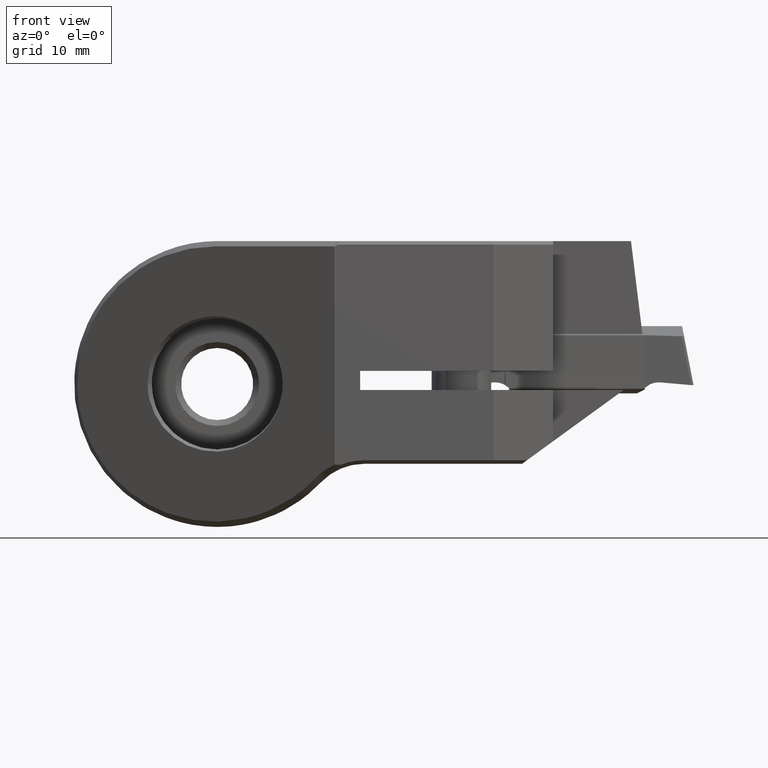
[diagram: clean part render]
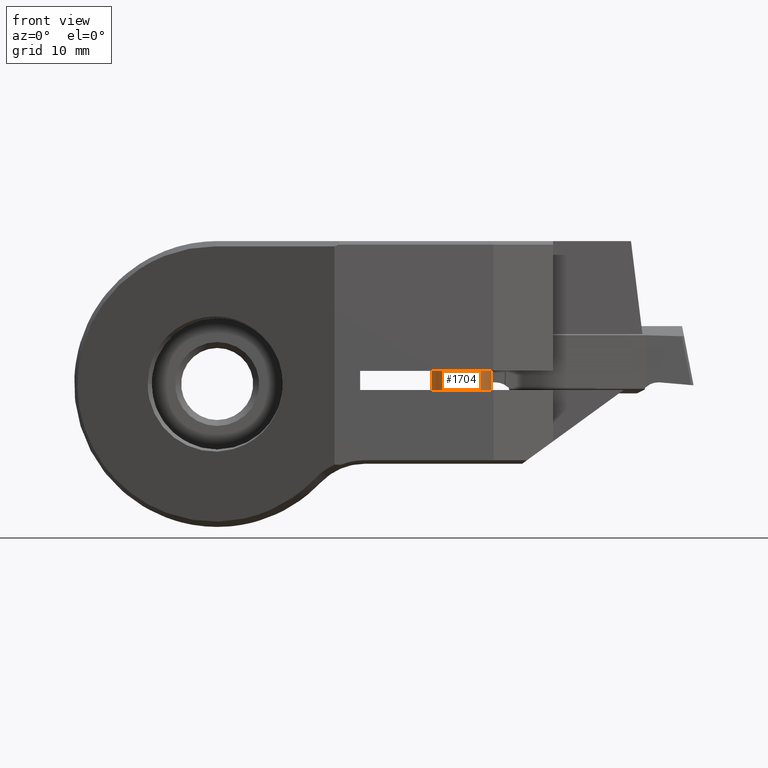
[diagram: same view with one face highlighted and labeled with its STEP entity id]
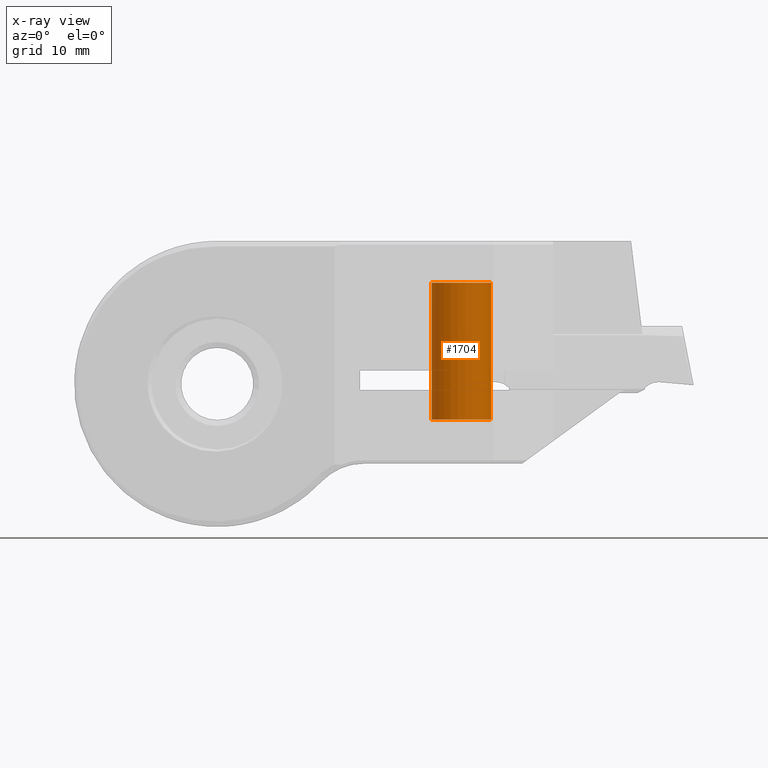
[diagram: x-ray of the same camera — body ghosted, the highlighted face saturated]
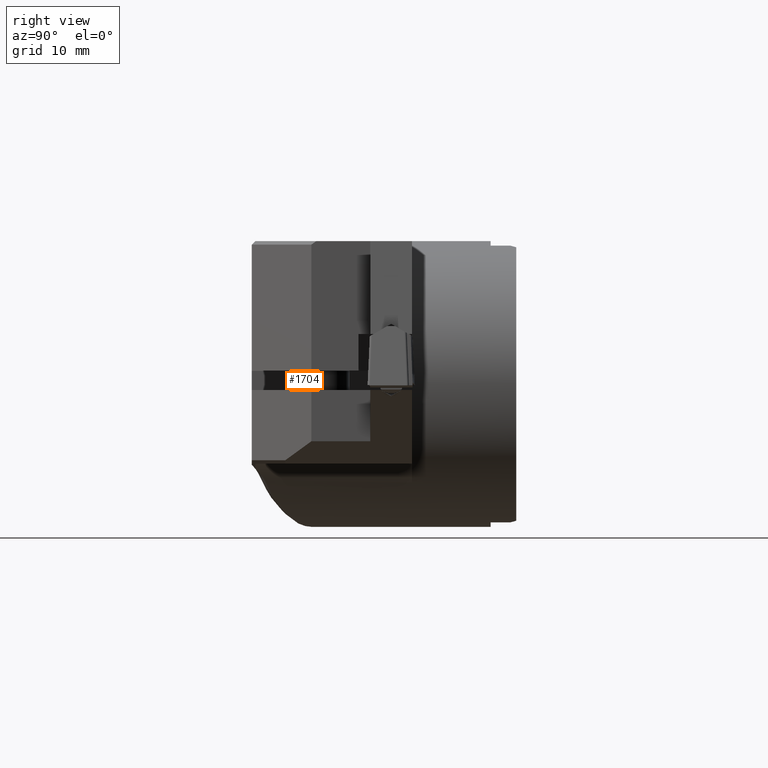
[diagram: same view with one face highlighted and labeled with its STEP entity id]
A machine part, front view. The second image highlights one B-rep face of the part: STEP entity #1704.
The next image is the same camera in x-ray: the body ghosted, the highlighted face saturated — about 0% of this face is hidden behind the body in this view.
A second angle (right view) of the same face is appended — the face is thin or edge-on in the first view.
In plain terms, the highlighted cylindrical surface (edge-blend (fillet) strip) has radius 2.5 mm, axis along (-0, -0, -1).
Its self-contained STEP definition (entity closure, byte-faithful):
#956=EDGE_CURVE('NONE',#1598,#1904,#2514,.T.);
#964=EDGE_CURVE('NONE',#1598,#1968,#2522,.T.);
#1336=VERTEX_POINT('NONE',#2932);
#1598=VERTEX_POINT('NONE',#3224);
#1704=ADVANCED_FACE('NONE',(#3334),#3335,.T.);
#1786=EDGE_CURVE('NONE',#1904,#1336,#3425,.T.);
#1904=VERTEX_POINT('NONE',#3555);
#1968=VERTEX_POINT('NONE',#3627);
#2224=EDGE_CURVE('NONE',#1968,#1336,#3910,.T.);
#2514=CIRCLE('',#4411,2.5);
#2522=LINE('',#4424,#4425);
#2932=CARTESIAN_POINT('',(17.9999999999999,-16.4999999999999,-2.99999999999998));
#3224=CARTESIAN_POINT('',(22.9999999999999,-16.4999999999999,8.50000000000002));
#3334=FACE_OUTER_BOUND('',#5824,.T.);
#3335=CYLINDRICAL_SURFACE('',#5825,2.5);
#3425=LINE('',#6014,#6015);
#3555=CARTESIAN_POINT('',(17.9999999999999,-16.4999999999999,8.50000000000002));
#3627=CARTESIAN_POINT('',(22.9999999999999,-16.4999999999999,-2.99999999999998));
#3910=CIRCLE('',#6928,2.5);
#4411=AXIS2_PLACEMENT_3D('',#7316,#7317,#7318);
#4424=CARTESIAN_POINT('',(22.9999999999999,-16.4999999999999,-29.0792492179353));
#4425=VECTOR('',#7321,1000.0);
#5824=EDGE_LOOP('',(#8145,#8146,#8147,#8148));
#5825=AXIS2_PLACEMENT_3D('',#8149,#8150,#8151);
#6014=CARTESIAN_POINT('',(17.9999999999999,-16.4999999999999,-29.0792492179353));
#6015=VECTOR('',#8261,1000.0);
#6928=AXIS2_PLACEMENT_3D('',#8794,#8795,#8796);
#7316=CARTESIAN_POINT('',(20.4999999999999,-16.4999999999999,8.50000000000002));
#7317=DIRECTION('',(-1.64943107190545E-016,-5.33855642974837E-018,-1.0));
#7318=DIRECTION('',(-1.0,4.9960036108132E-016,1.64943107190545E-016));
#7321=DIRECTION('',(-1.64943107190545E-016,-5.33855642974837E-018,-1.0));
#8145=ORIENTED_EDGE('',*,*,#964,.F.);
#8146=ORIENTED_EDGE('',*,*,#956,.T.);
#8147=ORIENTED_EDGE('',*,*,#1786,.T.);
#8148=ORIENTED_EDGE('',*,*,#2224,.F.);
#8149=CARTESIAN_POINT('',(20.4999999999999,-16.4999999999999,-29.0792492179353));
#8150=DIRECTION('',(-1.64943107190545E-016,-5.33855642974837E-018,-1.0));
#8151=DIRECTION('',(-1.0,4.9960036108132E-016,1.64943107190545E-016));
#8261=DIRECTION('',(-1.64943107190545E-016,-5.33855642974837E-018,-1.0));
#8794=CARTESIAN_POINT('',(20.4999999999999,-16.4999999999999,-2.99999999999998));
#8795=DIRECTION('',(-1.64943107190545E-016,-5.33855642974837E-018,-1.0));
#8796=DIRECTION('',(-1.0,4.9960036108132E-016,1.64943107190545E-016));